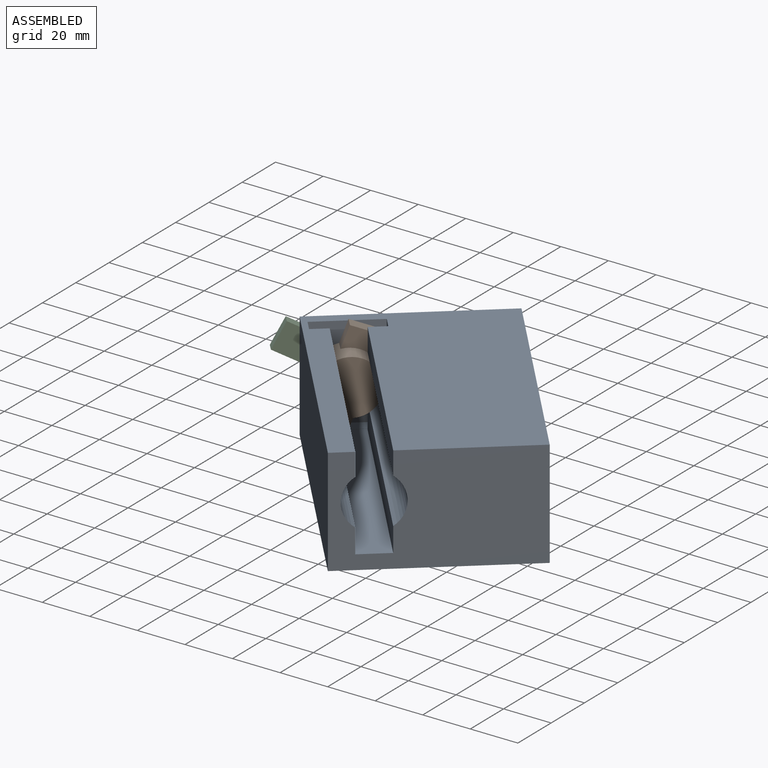
[diagram: assembled view]
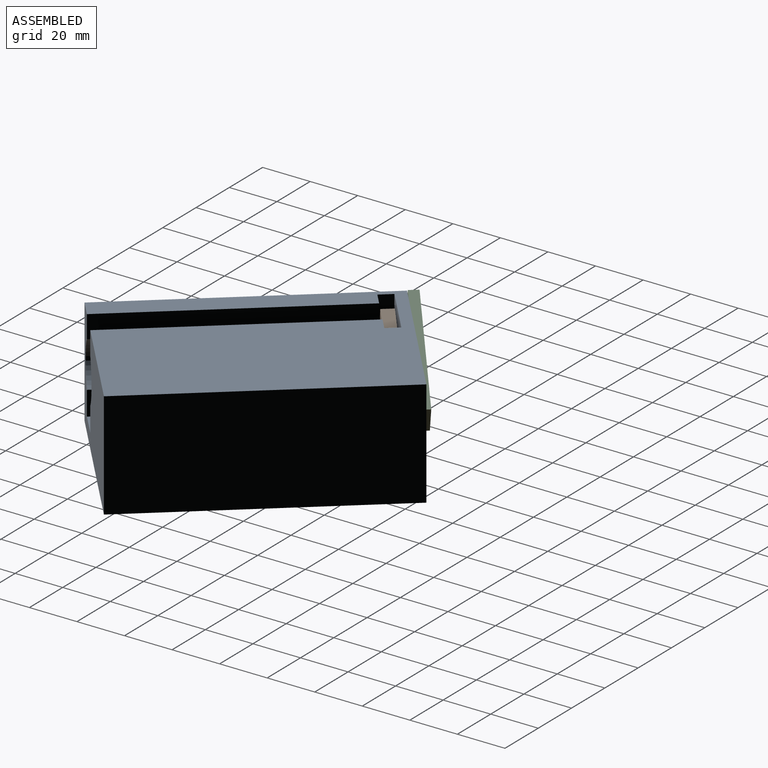
[diagram: assembled view, second angle]
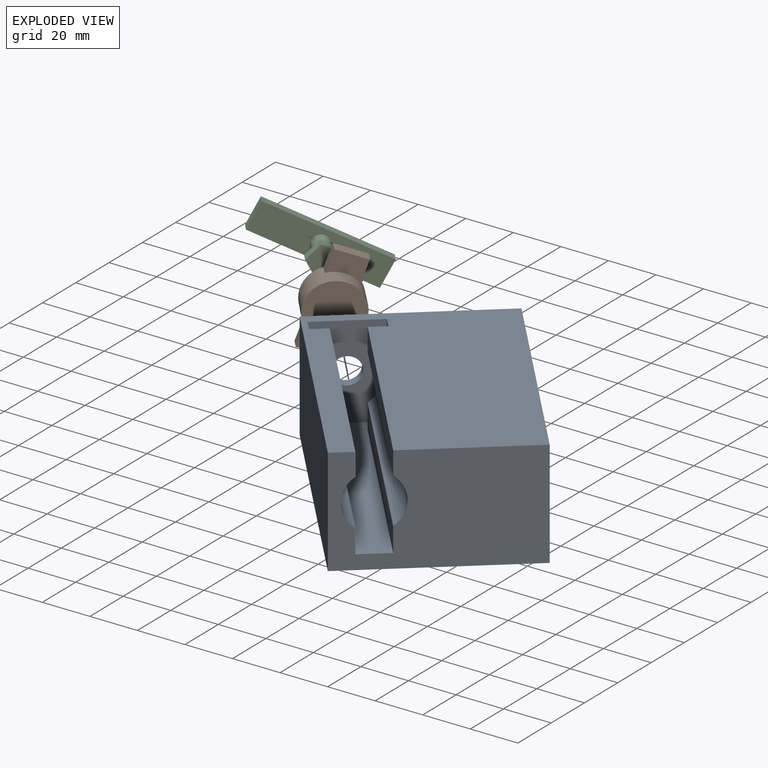
[diagram: exploded view]
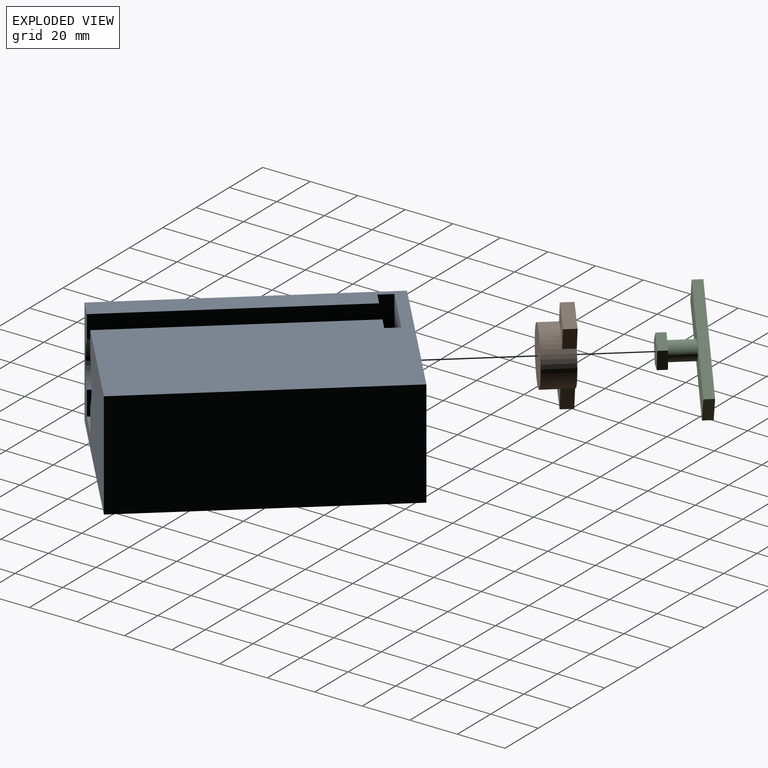
[diagram: exploded view, second angle]
ASSEMBLY  parts=3 mates=3
PART A: 21 faces, bbox 111.5x76.7x45 mm
  f0: plane 111.53x76.73mm, normal (0,0,1), area 7069.3mm2, adj f1,f6,f8,f9,f10,f11,f14,f16
  f1: plane 101.07x9.57mm, normal (0,1,0), area 966.9mm2, adj f0,f2,f11,f14
  f2: cylinder r=11.61mm len=101.07mm, axis (1,0,0), area 2287.5mm2, adj f1,f3,f11,f14
  f3: plane 101.6x10.18mm, normal (0,1,0), area 1029.4mm2, adj f2,f7,f11,f13,f14,f15
  f4: plane 101.6x10.24mm, normal (0,-1,0), area 1034.9mm2, adj f5,f7,f11,f13,f15,f16
  f5: cylinder r=11.61mm len=101.07mm, axis (1,0,0), area 2268.3mm2, adj f4,f6,f11,f16
  f6: plane 101.07x9.62mm, normal (0,-1,0), area 972.3mm2, adj f0,f5,f11,f16
  f7: plane 13.12x0.05mm, normal (1,0,0), area 0.7mm2, adj f3,f4,f13,f15
  f8: plane 111.53x44.96mm, normal (0,1,0), area 5014mm2, adj f0,f9,f11,f12
  f9: plane 76.73x44.96mm, normal (-1,0,0), area 3351.4mm2, adj f0,f8,f10,f12,f20
  f10: plane 111.53x44.96mm, normal (0,-1,0), area 5014mm2, adj f0,f9,f11,f12
  f11: plane 76.73x44.96mm, normal (1,0,0), area 2802.3mm2, adj f0,f1,f2,f3,f4,f5,f6,f8
  f12: plane 111.53x76.73mm, normal (0,0,-1), area 8556.9mm2, adj f8,f9,f10,f11
  f13: plane 101.6x13.12mm, normal (0,0,1), area 1332.6mm2, adj f3,f4,f7,f11
  f14: plane 38.91x7.14mm, normal (-1,0,0), area 209.2mm2, adj f0,f1,f2,f3,f15,f19
  f15: plane 27.41x5.9mm, normal (0,0,1), area 154.9mm2, adj f3,f4,f7,f14,f16,f17,f18,f19
  f16: plane 38.91x7.15mm, normal (-1,0,0), area 211mm2, adj f0,f4,f5,f6,f15,f17
  f17: plane 38.91x5.9mm, normal (0,-1,0), area 229.7mm2, adj f0,f15,f16,f18
  f18: plane 38.91x27.41mm, normal (1,0,0), area 968.6mm2, adj f0,f15,f17,f19,f20
  f19: plane 38.91x5.9mm, normal (0,1,0), area 229.7mm2, adj f0,f14,f15,f18
  f20: cylinder r=5.59mm len=11.17mm, axis (1,0,0), area 159.6mm2, adj f9,f18
PART B: 21 faces, bbox 12.7x23.3x39 mm
  f0: plane 13.12x9.55mm, normal (1,0,0), area 107mm2, adj f2,f3,f4,f18
  f1: plane 38.97x23.22mm, normal (-1,0,0), area 536.4mm2, adj f2,f3,f4,f5,f6,f7,f8,f9
  f2: plane 9.62x5.08mm, normal (0,1,0), area 48.9mm2, adj f0,f1,f3,f9,f20
  f3: plane 13.12x5.08mm, normal (0,0,1), area 66.6mm2, adj f0,f1,f2,f4
  f4: plane 9.57x5.08mm, normal (0,-1,0), area 48.6mm2, adj f0,f1,f3,f5,f17
  f5: cylinder r=11.61mm len=19.22mm, axis (-1,0,0), area 115mm2, adj f1,f4,f6,f17
  f6: plane 10.18x5.08mm, normal (0,-1,0), area 51.7mm2, adj f1,f5,f7,f10,f17
  f7: plane 13.12x5.08mm, normal (0,0,-1), area 66.6mm2, adj f1,f6,f8,f10
  f8: plane 10.24x5.08mm, normal (0,1,0), area 52mm2, adj f1,f7,f9,f10,f20
  f9: cylinder r=11.61mm len=19.11mm, axis (-1,0,0), area 114mm2, adj f1,f2,f8,f20
  f10: plane 13.12x10.17mm, normal (1,0,0), area 115.1mm2, adj f6,f7,f8,f18
  f11: plane 8.02x3.84mm, normal (0,0,-1), area 30.8mm2, adj f1,f12,f15,f16
  f12: plane 7.64x3.84mm, normal (0,-0.95,-0.31), area 30.8mm2, adj f1,f11,f13,f16
  f13: plane 6.51x4.69mm, normal (0,-0.58,0.81), area 30.8mm2, adj f1,f12,f14,f16
  f14: plane 6.47x4.74mm, normal (0,0.59,0.81), area 30.8mm2, adj f1,f13,f15,f16
  f15: plane 7.62x3.84mm, normal (0,0.95,-0.31), area 30.8mm2, adj f1,f11,f14,f16
  f16: plane 12.98x12.36mm, normal (-1,0,0), area 110.7mm2, adj f11,f12,f13,f14,f15
  f17: plane 19.35x5.15mm, normal (-1,0,0), area 1.2mm2, adj f4,f5,f6,f18
  f18: cylinder r=11.67mm len=23.33mm, axis (-1,0,0), area 558.5mm2, adj f0,f10,f17,f19,f20
  f19: plane 23.33x23.33mm, normal (1,0,0), area 427.5mm2, adj f18
  f20: plane 19.24x5.07mm, normal (-1,0,0), area 1.2mm2, adj f2,f8,f9,f18
PART C: 14 faces, bbox 18.3x52.2x12.8 mm
  f0: plane 8.02x3.84mm, normal (0,0,1), area 30.8mm2, adj f1,f4,f5,f6
  f1: plane 7.64x3.84mm, normal (0,-0.95,0.31), area 30.8mm2, adj f0,f2,f5,f6
  f2: plane 6.51x4.69mm, normal (0,-0.58,-0.81), area 30.8mm2, adj f1,f3,f5,f6
  f3: plane 6.47x4.74mm, normal (0,0.59,-0.81), area 30.8mm2, adj f2,f4,f5,f6
  f4: plane 7.62x3.84mm, normal (0,0.95,0.31), area 30.8mm2, adj f0,f3,f5,f6
  f5: plane 12.98x12.36mm, normal (1,0,0), area 110.7mm2, adj f0,f1,f2,f3,f4
  f6: plane 12.98x12.36mm, normal (-1,0,0), area 64.8mm2, adj f0,f1,f2,f3,f4,f7
  f7: cylinder r=3.82mm len=10.41mm, axis (1,0,0), area 250.3mm2, adj f6,f13
  f8: plane 52.17x4.06mm, normal (0,0,-1), area 212mm2, adj f9,f11,f12,f13
  f9: plane 11.96x4.06mm, normal (0,-1,0), area 48.6mm2, adj f8,f10,f12,f13
  f10: plane 52.17x4.06mm, normal (0,0,1), area 212mm2, adj f9,f11,f12,f13
  f11: plane 11.96x4.06mm, normal (0,1,0), area 48.6mm2, adj f8,f10,f12,f13
  f12: plane 52.17x11.96mm, normal (-1,0,0), area 623.9mm2, adj f8,f9,f10,f11
  f13: plane 52.17x11.96mm, normal (1,0,0), area 577.9mm2, adj f7,f8,f9,f10,f11
PLACE A rot(axis=(0,0,-1),50deg) t=(-54.05,-63.79,-21.23)mm
PLACE B rot(axis=(-0.35,0.16,-0.92),53.6deg) t=(-99.35,-30.96,-1.79)mm
PLACE C rot(axis=(-0.45,0.21,-0.87),56.6deg) t=(-103.44,-39.79,4.56)mm
MATE parallel C.f7 <-> A.f9  axis (0.64,-0.77,0) through (-110.14,-31.82,4.56)mm
MATE cylindrical B.f5 <-> A.f2  axis (-0.64,0.77,0) through (-100.39,-43.44,4.56)mm
MATE revolute C.f7 <-> A.f2  axis (0.64,-0.77,0) through (-106.79,-35.8,4.56)mm
